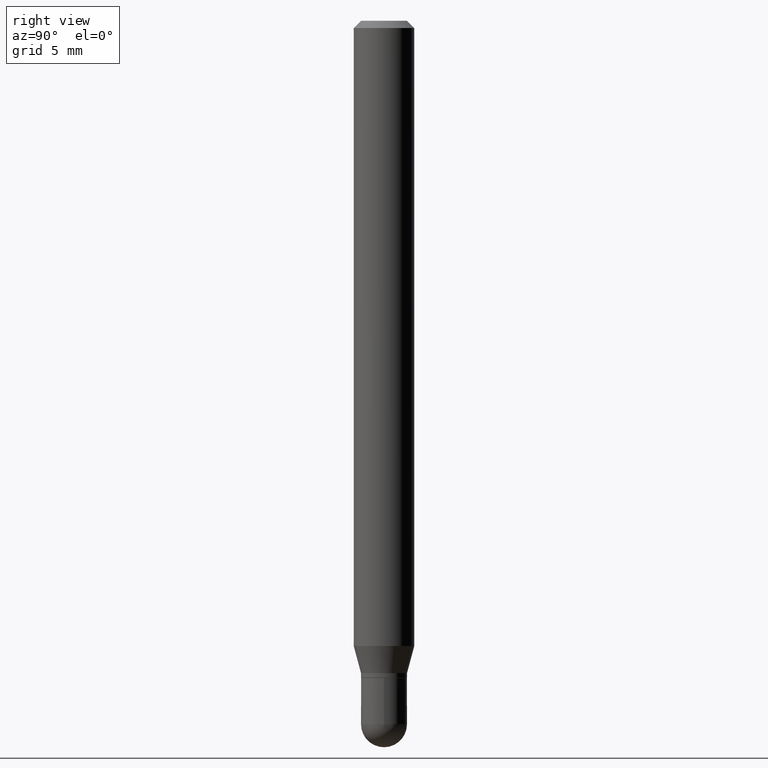
[diagram: clean part render]
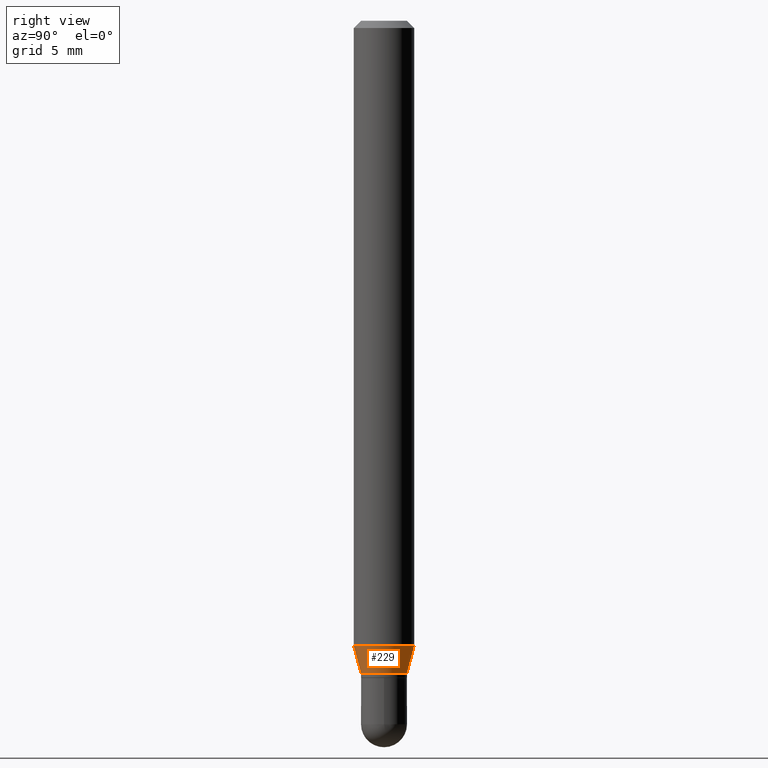
[diagram: same view with one face highlighted and labeled with its STEP entity id]
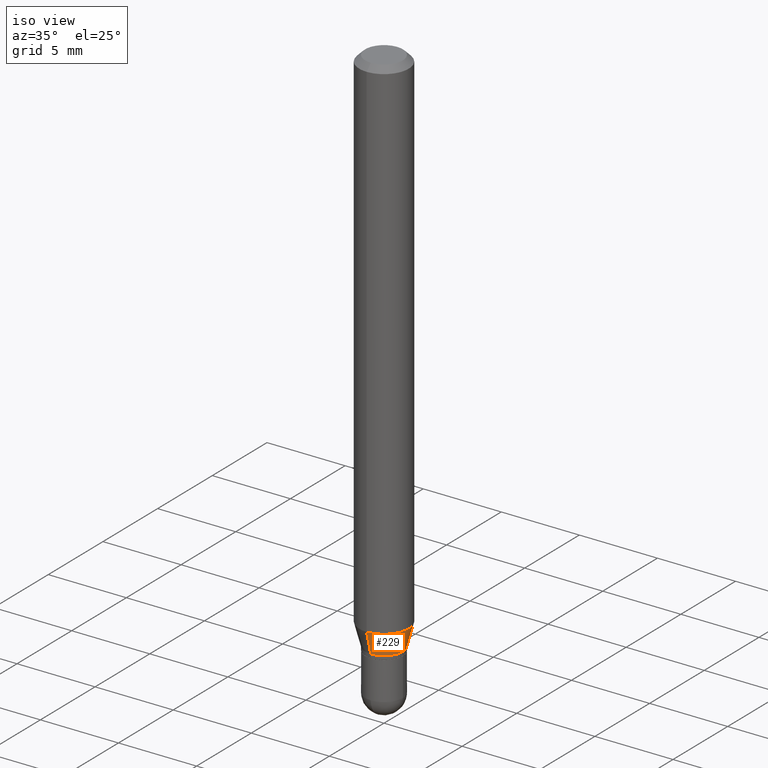
[diagram: same view with one face highlighted and labeled with its STEP entity id]
A machine part, right view. The second image highlights one B-rep face of the part: STEP entity #229.
A second angle (iso view) of the same face is appended — the face is thin or edge-on in the first view.
In plain terms, the highlighted conical surface has half-angle 15 deg.
Its self-contained STEP definition (entity closure, byte-faithful):
#15 = VECTOR ( 'NONE', #73, 39.37007874015748854 ) ;
#17 = CARTESIAN_POINT ( 'NONE',  ( -4.364351673553598192E-16, -0.06250000000000446865, -1.291019237886467108 ) ) ;
#21 = CARTESIAN_POINT ( 'NONE',  ( 3.294078296903620621E-29, -4.702979802570672656E-15, -1.347000000000000419 ) ) ;
#42 = EDGE_CURVE ( 'NONE', #47, #335, #152, .T. ) ;
#47 = VERTEX_POINT ( 'NONE', #17 ) ;
#51 = EDGE_CURVE ( 'NONE', #134, #324, #509, .T. ) ;
#52 = ORIENTED_EDGE ( 'NONE', *, *, #51, .T. ) ;
#58 = EDGE_CURVE ( 'NONE', #324, #335, #384, .T. ) ;
#62 = AXIS2_PLACEMENT_3D ( 'NONE', #310, #186, #149 ) ;
#70 = CARTESIAN_POINT ( 'NONE',  ( -3.316907271900641323E-16, -0.04750000000000462186, -1.347000000000000197 ) ) ;
#73 = DIRECTION ( 'NONE',  ( -1.807323732225333689E-15, -0.2588190451025186856, 0.9659258262890687563 ) ) ;
#79 = LINE ( 'NONE', #70, #15 ) ;
#84 = ORIENTED_EDGE ( 'NONE', *, *, #432, .F. ) ;
#86 = ORIENTED_EDGE ( 'NONE', *, *, #58, .T. ) ;
#90 = ORIENTED_EDGE ( 'NONE', *, *, #42, .F. ) ;
#113 = CARTESIAN_POINT ( 'NONE',  ( 3.157177767191435444E-29, -4.507525909807155110E-15, -1.291019237886467330 ) ) ;
#134 = VERTEX_POINT ( 'NONE', #274 ) ;
#139 = DIRECTION ( 'NONE',  ( -2.445492425318203603E-29, 3.491447514900276167E-15, 1.000000000000000000 ) ) ;
#143 = DIRECTION ( 'NONE',  ( -2.445492425318203603E-29, 3.491447514900276167E-15, 1.000000000000000000 ) ) ;
#149 = DIRECTION ( 'NONE',  ( -6.982962677686265922E-15, -1.000000000000000000, 5.751258934030037627E-15 ) ) ;
#152 = CIRCLE ( 'NONE', #238, 0.06250000000000000000 ) ;
#175 = EDGE_LOOP ( 'NONE', ( #52, #86, #90, #84 ) ) ;
#180 = DIRECTION ( 'NONE',  ( -6.982962677686265922E-15, -1.000000000000000000, 5.751258934030037627E-15 ) ) ;
#186 = DIRECTION ( 'NONE',  ( -2.445492425318203603E-29, 3.491447514900276167E-15, 1.000000000000000000 ) ) ;
#187 = CARTESIAN_POINT ( 'NONE',  ( 4.440892098500942692E-16, 0.06249999999999551747, -1.291019237886467552 ) ) ;
#216 = DIRECTION ( 'NONE',  ( -6.982962677686265922E-15, -1.000000000000000000, 4.370956789862821150E-15 ) ) ;
#229 = ADVANCED_FACE ( 'NONE', ( #498 ), #353, .T. ) ;
#238 = AXIS2_PLACEMENT_3D ( 'NONE', #113, #143, #216 ) ;
#261 = CARTESIAN_POINT ( 'NONE',  ( 3.375077994860798862E-16, 0.04749999999999521966, -1.347000000000000641 ) ) ;
#270 = DIRECTION ( 'NONE',  ( 1.839019923739603865E-15, 0.2588190451025254579, 0.9659258262890669799 ) ) ;
#274 = CARTESIAN_POINT ( 'NONE',  ( -3.316907271900641323E-16, -0.04750000000000462186, -1.347000000000000197 ) ) ;
#310 = CARTESIAN_POINT ( 'NONE',  ( 3.294078296903620621E-29, -4.702979802570672656E-15, -1.347000000000000419 ) ) ;
#324 = VERTEX_POINT ( 'NONE', #416 ) ;
#335 = VERTEX_POINT ( 'NONE', #187 ) ;
#353 = CONICAL_SURFACE ( 'NONE', #367, 0.04749999999999991729, 0.2617993877991508511 ) ;
#367 = AXIS2_PLACEMENT_3D ( 'NONE', #21, #139, #180 ) ;
#384 = LINE ( 'NONE', #261, #456 ) ;
#416 = CARTESIAN_POINT ( 'NONE',  ( 3.907985046680871024E-16, 0.04749999999999521966, -1.347000000000000641 ) ) ;
#432 = EDGE_CURVE ( 'NONE', #134, #47, #79, .T. ) ;
#456 = VECTOR ( 'NONE', #270, 39.37007874015748854 ) ;
#498 = FACE_OUTER_BOUND ( 'NONE', #175, .T. ) ;
#509 = CIRCLE ( 'NONE', #62, 0.04749999999999991729 ) ;